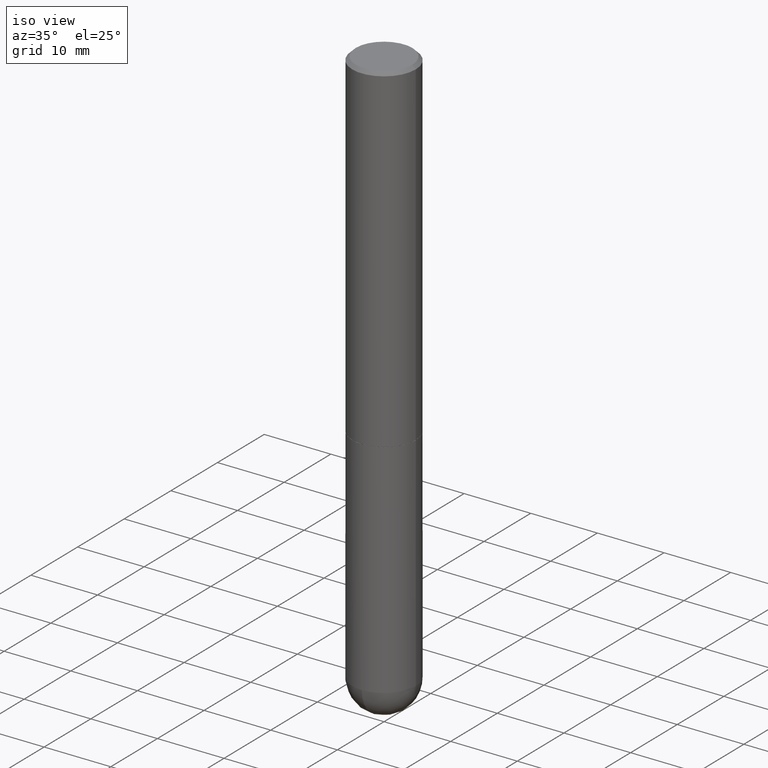
[diagram: clean part render]
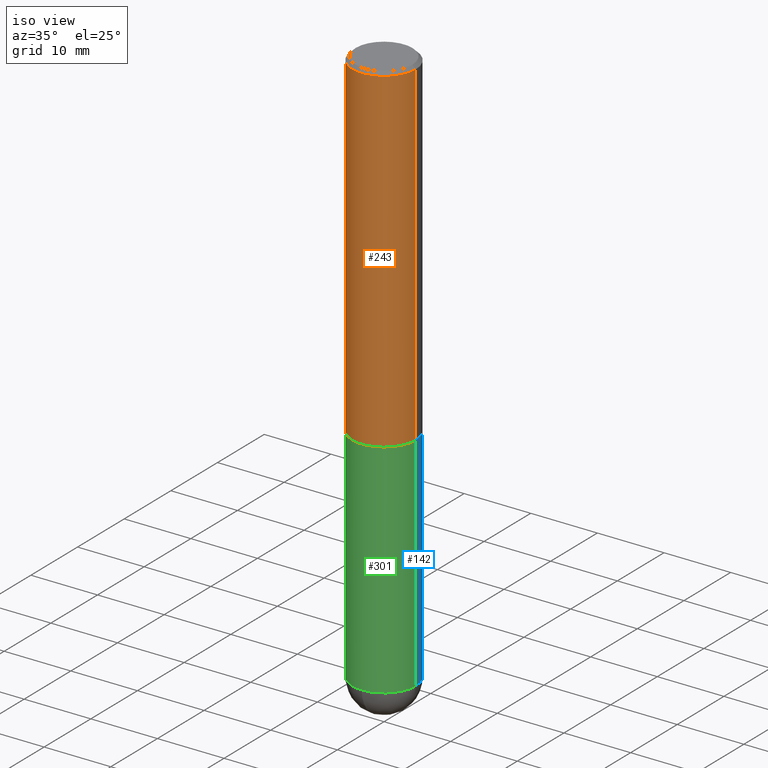
[diagram: same view with three faces highlighted in distinct colors, each labeled with its STEP entity id]
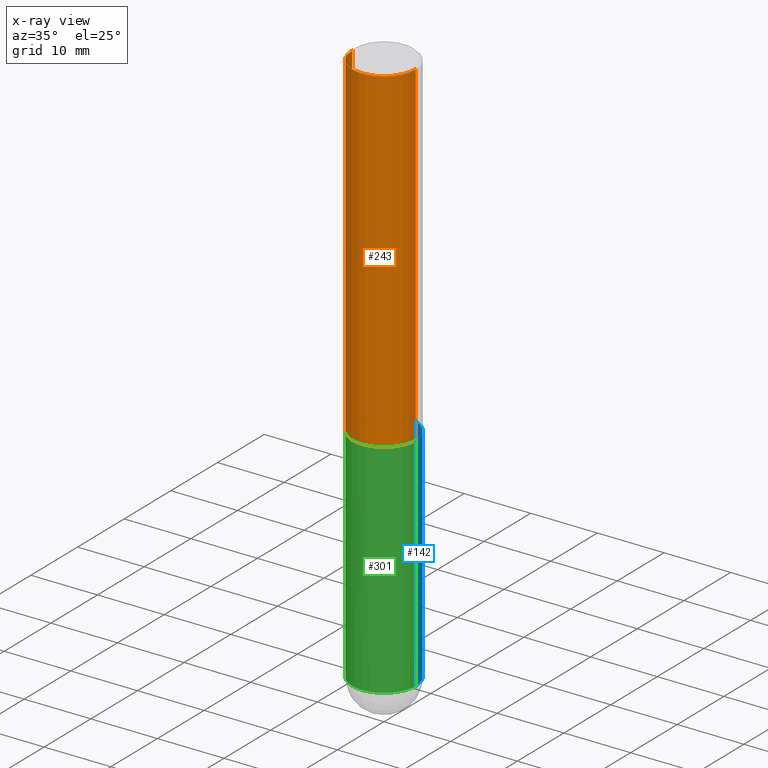
[diagram: x-ray of the same camera — body ghosted, the three highlighted faces saturated]
A machine part, iso view with three faces highlighted in distinct colors.
The next image is the same camera in x-ray (body ghosted, the three faces saturated) — at least one of them is partly hidden behind the body in this view.
Their STEP definitions:

[orange] entity #243 — the highlighted cylindrical surface (partial cylindrical patch) has radius 4.7625 mm, axis along (-0, 0, 1).
#17 = DIRECTION ( 'NONE',  ( 1.000000000000000000, -6.982962677686268288E-15, 0.000000000000000000 ) ) ;
#27 = DIRECTION ( 'NONE',  ( -2.445468806185136597E-29, 3.491481338843145583E-15, 1.000000000000000000 ) ) ;
#33 = DIRECTION ( 'NONE',  ( -2.445468806185136877E-29, 3.491481338843145188E-15, 1.000000000000000000 ) ) ;
#40 = VERTEX_POINT ( 'NONE', #276 ) ;
#43 = VECTOR ( 'NONE', #33, 39.37007874015748143 ) ;
#54 = VECTOR ( 'NONE', #378, 39.37007874015748143 ) ;
#61 = CARTESIAN_POINT ( 'NONE',  ( -0.1875000000000001110, 1.332267629550188637E-15, -9.223003294227953596E-30 ) ) ;
#66 = FACE_OUTER_BOUND ( 'NONE', #332, .T. ) ;
#69 = EDGE_CURVE ( 'NONE', #298, #324, #391, .T. ) ;
#75 = CARTESIAN_POINT ( 'NONE',  ( 4.888492143564087030E-29, -6.979471196347446580E-15, -1.998999999999999666 ) ) ;
#97 = LINE ( 'NONE', #198, #54 ) ;
#140 = ORIENTED_EDGE ( 'NONE', *, *, #256, .F. ) ;
#154 = DIRECTION ( 'NONE',  ( 1.000000000000000000, -6.982962677686266711E-15, 4.876176775795935793E-29 ) ) ;
#162 = LINE ( 'NONE', #61, #43 ) ;
#168 = AXIS2_PLACEMENT_3D ( 'NONE', #216, #316, #285 ) ;
#176 = CYLINDRICAL_SURFACE ( 'NONE', #200, 0.1875000000000001110 ) ;
#186 = AXIS2_PLACEMENT_3D ( 'NONE', #75, #209, #17 ) ;
#198 = CARTESIAN_POINT ( 'NONE',  ( 0.1875000000000001110, -1.309305502066175797E-15, 9.142831454617385217E-30 ) ) ;
#200 = AXIS2_PLACEMENT_3D ( 'NONE', #252, #27, #154 ) ;
#209 = DIRECTION ( 'NONE',  ( -2.445468806185136597E-29, 3.491481338843145583E-15, 1.000000000000000000 ) ) ;
#216 = CARTESIAN_POINT ( 'NONE',  ( 4.890937612370282792E-31, -6.982962677686303935E-17, -0.02000000000000003858 ) ) ;
#243 = ADVANCED_FACE ( 'NONE', ( #66 ), #176, .T. ) ;
#252 = CARTESIAN_POINT ( 'NONE',  ( 0.000000000000000000, 0.000000000000000000, 0.000000000000000000 ) ) ;
#256 = EDGE_CURVE ( 'NONE', #353, #40, #297, .T. ) ;
#264 = ORIENTED_EDGE ( 'NONE', *, *, #69, .T. ) ;
#276 = CARTESIAN_POINT ( 'NONE',  ( 0.1874999999999999722, -1.356173001359025269E-15, -0.02000000000000003858 ) ) ;
#285 = DIRECTION ( 'NONE',  ( 1.000000000000000000, -6.982962677686266711E-15, 0.000000000000000000 ) ) ;
#294 = EDGE_CURVE ( 'NONE', #298, #353, #162, .T. ) ;
#296 = CARTESIAN_POINT ( 'NONE',  ( -0.1875000000000002776, -2.192382782011961963E-15, -1.998999999999999666 ) ) ;
#297 = CIRCLE ( 'NONE', #168, 0.1874999999999999722 ) ;
#298 = VERTEX_POINT ( 'NONE', #296 ) ;
#302 = ORIENTED_EDGE ( 'NONE', *, *, #294, .F. ) ;
#310 = ORIENTED_EDGE ( 'NONE', *, *, #367, .T. ) ;
#316 = DIRECTION ( 'NONE',  ( -2.445468806185136597E-29, 3.491481338843145583E-15, 1.000000000000000000 ) ) ;
#324 = VERTEX_POINT ( 'NONE', #410 ) ;
#332 = EDGE_LOOP ( 'NONE', ( #302, #264, #310, #140 ) ) ;
#353 = VERTEX_POINT ( 'NONE', #406 ) ;
#367 = EDGE_CURVE ( 'NONE', #324, #40, #97, .T. ) ;
#378 = DIRECTION ( 'NONE',  ( -2.445468806185136877E-29, 3.491481338843145188E-15, 1.000000000000000000 ) ) ;
#391 = CIRCLE ( 'NONE', #186, 0.1875000000000002776 ) ;
#406 = CARTESIAN_POINT ( 'NONE',  ( -0.1874999999999999722, 1.239475875289311710E-15, -0.02000000000000003858 ) ) ;
#410 = CARTESIAN_POINT ( 'NONE',  ( 0.1875000000000002776, -8.288776698413623955E-15, -1.998999999999999666 ) ) ;

[blue] entity #142 — the highlighted cylindrical surface (partial cylindrical patch) has radius 4.7625 mm, axis along (-0, 0, 1).
#3 = VERTEX_POINT ( 'NONE', #144 ) ;
#6 = EDGE_CURVE ( 'NONE', #238, #364, #166, .T. ) ;
#8 = AXIS2_PLACEMENT_3D ( 'NONE', #118, #32, #339 ) ;
#13 = CARTESIAN_POINT ( 'NONE',  ( -0.1874999999999999722, 1.332267629550187651E-15, -9.223003294227946589E-30 ) ) ;
#15 = ORIENTED_EDGE ( 'NONE', *, *, #6, .F. ) ;
#16 = EDGE_CURVE ( 'NONE', #104, #364, #247, .T. ) ;
#18 = CIRCLE ( 'NONE', #8, 0.1874999999999999722 ) ;
#22 = CYLINDRICAL_SURFACE ( 'NONE', #226, 0.1874999999999999722 ) ;
#24 = FACE_OUTER_BOUND ( 'NONE', #199, .T. ) ;
#32 = DIRECTION ( 'NONE',  ( -2.445468806185136597E-29, 3.491481338843145583E-15, 1.000000000000000000 ) ) ;
#53 = AXIS2_PLACEMENT_3D ( 'NONE', #363, #278, #334 ) ;
#57 = CARTESIAN_POINT ( 'NONE',  ( -0.1874999999999999722, -7.941979676751917864E-15, -3.312499999999999556 ) ) ;
#62 = ORIENTED_EDGE ( 'NONE', *, *, #16, .T. ) ;
#70 = ORIENTED_EDGE ( 'NONE', *, *, #82, .T. ) ;
#82 = EDGE_CURVE ( 'NONE', #266, #104, #172, .T. ) ;
#87 = DIRECTION ( 'NONE',  ( -2.445468806185136597E-29, 3.491481338843145583E-15, 1.000000000000000000 ) ) ;
#104 = VERTEX_POINT ( 'NONE', #57 ) ;
#112 = DIRECTION ( 'NONE',  ( -2.445468806185136597E-29, 3.491481338843145583E-15, 1.000000000000000000 ) ) ;
#115 = EDGE_CURVE ( 'NONE', #3, #238, #153, .T. ) ;
#118 = CARTESIAN_POINT ( 'NONE',  ( 8.100615420488263856E-29, -1.156553193491791947E-14, -3.312499999999999556 ) ) ;
#142 = ADVANCED_FACE ( 'NONE', ( #24 ), #22, .T. ) ;
#144 = CARTESIAN_POINT ( 'NONE',  ( 0.1874999999999999722, -1.058355280836828072E-14, -3.312499999999999556 ) ) ;
#146 = DIRECTION ( 'NONE',  ( -2.445468806185136877E-29, 3.491481338843145188E-15, 1.000000000000000000 ) ) ;
#148 = EDGE_CURVE ( 'NONE', #3, #266, #18, .T. ) ;
#150 = CARTESIAN_POINT ( 'NONE',  ( 0.000000000000000000, 0.000000000000000000, 0.000000000000000000 ) ) ;
#153 = LINE ( 'NONE', #368, #269 ) ;
#166 = CIRCLE ( 'NONE', #211, 0.1875000000000000278 ) ;
#172 = CIRCLE ( 'NONE', #53, 0.1874999999999999722 ) ;
#183 = CARTESIAN_POINT ( 'NONE',  ( 4.890937612370272633E-29, -6.982962677686290376E-15, -1.999999999999999778 ) ) ;
#189 = DIRECTION ( 'NONE',  ( -2.445468806185136877E-29, 3.491481338843145188E-15, 1.000000000000000000 ) ) ;
#192 = CARTESIAN_POINT ( 'NONE',  ( -0.1875000000000000278, -7.941979676751916286E-15, -1.999999999999999778 ) ) ;
#199 = EDGE_LOOP ( 'NONE', ( #70, #62, #15, #307, #231 ) ) ;
#211 = AXIS2_PLACEMENT_3D ( 'NONE', #183, #112, #312 ) ;
#226 = AXIS2_PLACEMENT_3D ( 'NONE', #150, #87, #402 ) ;
#231 = ORIENTED_EDGE ( 'NONE', *, *, #148, .T. ) ;
#238 = VERTEX_POINT ( 'NONE', #355 ) ;
#247 = LINE ( 'NONE', #13, #330 ) ;
#266 = VERTEX_POINT ( 'NONE', #403 ) ;
#269 = VECTOR ( 'NONE', #189, 39.37007874015748143 ) ;
#278 = DIRECTION ( 'NONE',  ( -2.445468806185136597E-29, 3.491481338843145583E-15, 1.000000000000000000 ) ) ;
#307 = ORIENTED_EDGE ( 'NONE', *, *, #115, .F. ) ;
#312 = DIRECTION ( 'NONE',  ( 1.000000000000000000, -6.982962677686266711E-15, 0.000000000000000000 ) ) ;
#330 = VECTOR ( 'NONE', #146, 39.37007874015748143 ) ;
#334 = DIRECTION ( 'NONE',  ( 1.000000000000000000, -6.982962677686263555E-15, 0.000000000000000000 ) ) ;
#339 = DIRECTION ( 'NONE',  ( 1.000000000000000000, -6.982962677686263555E-15, 0.000000000000000000 ) ) ;
#355 = CARTESIAN_POINT ( 'NONE',  ( 0.1875000000000000278, -8.292268179752465385E-15, -1.999999999999999778 ) ) ;
#363 = CARTESIAN_POINT ( 'NONE',  ( 8.100615420488263856E-29, -1.156553193491791947E-14, -3.312499999999999556 ) ) ;
#364 = VERTEX_POINT ( 'NONE', #192 ) ;
#368 = CARTESIAN_POINT ( 'NONE',  ( 0.1874999999999999722, -1.309305502066174811E-15, 9.142831454617378210E-30 ) ) ;
#402 = DIRECTION ( 'NONE',  ( 1.000000000000000000, -6.982962677686266711E-15, 4.876176775795935793E-29 ) ) ;
#403 = CARTESIAN_POINT ( 'NONE',  ( 1.309305502066255275E-15, 0.1874999999999883149, -3.312500000000000444 ) ) ;

[green] entity #301 — the highlighted cylindrical surface (partial cylindrical patch) has radius 4.7625 mm, axis along (-0, 0, 1).
#2 = CARTESIAN_POINT ( 'NONE',  ( 8.100615420488263856E-29, -1.156553193491791947E-14, -3.312499999999999556 ) ) ;
#3 = VERTEX_POINT ( 'NONE', #144 ) ;
#10 = EDGE_CURVE ( 'NONE', #236, #3, #255, .T. ) ;
#13 = CARTESIAN_POINT ( 'NONE',  ( -0.1874999999999999722, 1.332267629550187651E-15, -9.223003294227946589E-30 ) ) ;
#16 = EDGE_CURVE ( 'NONE', #104, #364, #247, .T. ) ;
#20 = EDGE_LOOP ( 'NONE', ( #384, #135, #35, #304, #79 ) ) ;
#35 = ORIENTED_EDGE ( 'NONE', *, *, #10, .T. ) ;
#36 = DIRECTION ( 'NONE',  ( -2.445468806185136597E-29, 3.491481338843145583E-15, 1.000000000000000000 ) ) ;
#44 = AXIS2_PLACEMENT_3D ( 'NONE', #2, #371, #90 ) ;
#46 = DIRECTION ( 'NONE',  ( 1.000000000000000000, -6.982962677686263555E-15, 0.000000000000000000 ) ) ;
#57 = CARTESIAN_POINT ( 'NONE',  ( -0.1874999999999999722, -7.941979676751917864E-15, -3.312499999999999556 ) ) ;
#79 = ORIENTED_EDGE ( 'NONE', *, *, #398, .F. ) ;
#90 = DIRECTION ( 'NONE',  ( 1.000000000000000000, -6.982962677686263555E-15, 0.000000000000000000 ) ) ;
#94 = CYLINDRICAL_SURFACE ( 'NONE', #287, 0.1874999999999999722 ) ;
#104 = VERTEX_POINT ( 'NONE', #57 ) ;
#115 = EDGE_CURVE ( 'NONE', #3, #238, #153, .T. ) ;
#126 = CARTESIAN_POINT ( 'NONE',  ( 4.890937612370272633E-29, -6.982962677686290376E-15, -1.999999999999999778 ) ) ;
#135 = ORIENTED_EDGE ( 'NONE', *, *, #338, .T. ) ;
#144 = CARTESIAN_POINT ( 'NONE',  ( 0.1874999999999999722, -1.058355280836828072E-14, -3.312499999999999556 ) ) ;
#146 = DIRECTION ( 'NONE',  ( -2.445468806185136877E-29, 3.491481338843145188E-15, 1.000000000000000000 ) ) ;
#153 = LINE ( 'NONE', #368, #269 ) ;
#157 = DIRECTION ( 'NONE',  ( -2.445468806185136597E-29, 3.491481338843145583E-15, 1.000000000000000000 ) ) ;
#161 = DIRECTION ( 'NONE',  ( 1.000000000000000000, -6.982962677686266711E-15, 4.876176775795935793E-29 ) ) ;
#189 = DIRECTION ( 'NONE',  ( -2.445468806185136877E-29, 3.491481338843145188E-15, 1.000000000000000000 ) ) ;
#192 = CARTESIAN_POINT ( 'NONE',  ( -0.1875000000000000278, -7.941979676751916286E-15, -1.999999999999999778 ) ) ;
#201 = CARTESIAN_POINT ( 'NONE',  ( -1.332267629550109160E-15, -0.1875000000000119349, -3.312499999999999112 ) ) ;
#219 = AXIS2_PLACEMENT_3D ( 'NONE', #333, #390, #46 ) ;
#228 = DIRECTION ( 'NONE',  ( 1.000000000000000000, -6.982962677686266711E-15, 0.000000000000000000 ) ) ;
#236 = VERTEX_POINT ( 'NONE', #201 ) ;
#238 = VERTEX_POINT ( 'NONE', #355 ) ;
#242 = CIRCLE ( 'NONE', #44, 0.1874999999999999722 ) ;
#247 = LINE ( 'NONE', #13, #330 ) ;
#255 = CIRCLE ( 'NONE', #219, 0.1874999999999999722 ) ;
#269 = VECTOR ( 'NONE', #189, 39.37007874015748143 ) ;
#282 = CIRCLE ( 'NONE', #377, 0.1875000000000000278 ) ;
#287 = AXIS2_PLACEMENT_3D ( 'NONE', #323, #36, #161 ) ;
#301 = ADVANCED_FACE ( 'NONE', ( #409 ), #94, .T. ) ;
#304 = ORIENTED_EDGE ( 'NONE', *, *, #115, .T. ) ;
#323 = CARTESIAN_POINT ( 'NONE',  ( 0.000000000000000000, 0.000000000000000000, 0.000000000000000000 ) ) ;
#330 = VECTOR ( 'NONE', #146, 39.37007874015748143 ) ;
#333 = CARTESIAN_POINT ( 'NONE',  ( 8.100615420488263856E-29, -1.156553193491791947E-14, -3.312499999999999556 ) ) ;
#338 = EDGE_CURVE ( 'NONE', #104, #236, #242, .T. ) ;
#355 = CARTESIAN_POINT ( 'NONE',  ( 0.1875000000000000278, -8.292268179752465385E-15, -1.999999999999999778 ) ) ;
#364 = VERTEX_POINT ( 'NONE', #192 ) ;
#368 = CARTESIAN_POINT ( 'NONE',  ( 0.1874999999999999722, -1.309305502066174811E-15, 9.142831454617378210E-30 ) ) ;
#371 = DIRECTION ( 'NONE',  ( -2.445468806185136597E-29, 3.491481338843145583E-15, 1.000000000000000000 ) ) ;
#377 = AXIS2_PLACEMENT_3D ( 'NONE', #126, #157, #228 ) ;
#384 = ORIENTED_EDGE ( 'NONE', *, *, #16, .F. ) ;
#390 = DIRECTION ( 'NONE',  ( -2.445468806185136597E-29, 3.491481338843145583E-15, 1.000000000000000000 ) ) ;
#398 = EDGE_CURVE ( 'NONE', #364, #238, #282, .T. ) ;
#409 = FACE_OUTER_BOUND ( 'NONE', #20, .T. ) ;